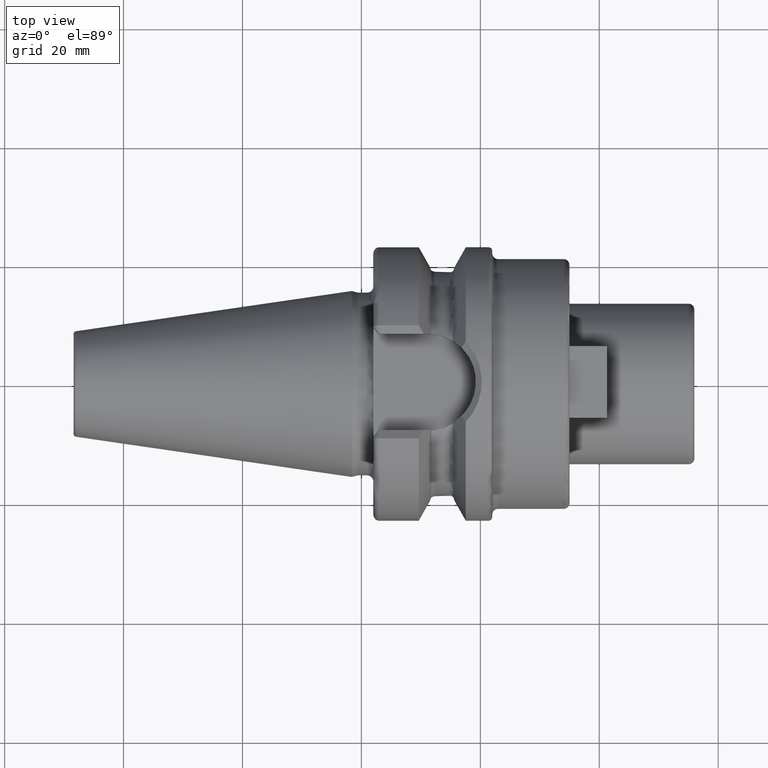
[diagram: clean part render]
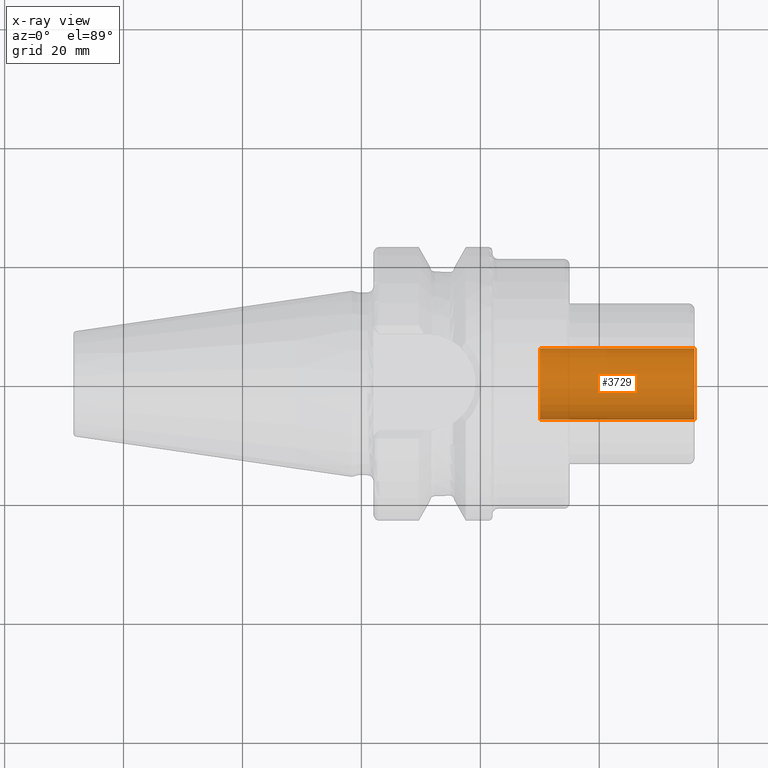
[diagram: x-ray — body ghosted, one internal face saturated and labeled with its STEP entity id]
A machine part, top view, then the same camera in x-ray: the body is ghosted and one INTERNAL B-rep face — a face not visible from any outside direction — is saturated and labeled: STEP entity #3729.
In plain terms, the highlighted cylindrical surface (edge-blend (fillet) strip) has radius 6 mm, axis along (1, 0, 0).
Its self-contained STEP definition (entity closure, byte-faithful):
#3664=CARTESIAN_POINT('',(5.6E1,0.E0,0.E0));
#3665=DIRECTION('',(-1.E0,0.E0,0.E0));
#3666=DIRECTION('',(0.E0,1.E0,0.E0));
#3667=AXIS2_PLACEMENT_3D('',#3664,#3665,#3666);
#3674=DIRECTION('',(-1.E0,0.E0,0.E0));
#3675=VECTOR('',#3674,2.6E1);
#3676=CARTESIAN_POINT('',(5.6E1,6.E0,0.E0));
#3677=LINE('',#3676,#3675);
#3678=DIRECTION('',(-1.E0,0.E0,0.E0));
#3679=VECTOR('',#3678,2.6E1);
#3680=CARTESIAN_POINT('',(5.6E1,-6.E0,0.E0));
#3681=LINE('',#3680,#3679);
#3682=CARTESIAN_POINT('',(3.E1,0.E0,0.E0));
#3683=DIRECTION('',(1.E0,0.E0,0.E0));
#3684=DIRECTION('',(0.E0,-1.E0,0.E0));
#3685=AXIS2_PLACEMENT_3D('',#3682,#3683,#3684);
#3702=CARTESIAN_POINT('',(3.E1,-6.E0,0.E0));
#3703=CARTESIAN_POINT('',(3.E1,6.E0,0.E0));
#3704=VERTEX_POINT('',#3702);
#3705=VERTEX_POINT('',#3703);
#3706=CARTESIAN_POINT('',(5.6E1,-6.E0,0.E0));
#3707=CARTESIAN_POINT('',(5.6E1,6.E0,0.E0));
#3708=VERTEX_POINT('',#3706);
#3709=VERTEX_POINT('',#3707);
#3714=CARTESIAN_POINT('',(1.708239138511E1,0.E0,0.E0));
#3715=DIRECTION('',(1.E0,0.E0,0.E0));
#3716=DIRECTION('',(0.E0,-1.E0,0.E0));
#3717=AXIS2_PLACEMENT_3D('',#3714,#3715,#3716);
#3718=CYLINDRICAL_SURFACE('',#3717,6.E0);
#3720=ORIENTED_EDGE('',*,*,#3719,.T.);
#3722=ORIENTED_EDGE('',*,*,#3721,.T.);
#3724=ORIENTED_EDGE('',*,*,#3723,.T.);
#3726=ORIENTED_EDGE('',*,*,#3725,.F.);
#3727=EDGE_LOOP('',(#3720,#3722,#3724,#3726));
#3728=FACE_OUTER_BOUND('',#3727,.F.);
#3729=ADVANCED_FACE('',(#3728),#3718,.F.);
#3668=CIRCLE('',#3667,6.E0);
#3686=CIRCLE('',#3685,6.E0);
#3719=EDGE_CURVE('',#3709,#3708,#3668,.T.);
#3721=EDGE_CURVE('',#3708,#3704,#3681,.T.);
#3723=EDGE_CURVE('',#3704,#3705,#3686,.T.);
#3725=EDGE_CURVE('',#3709,#3705,#3677,.T.);